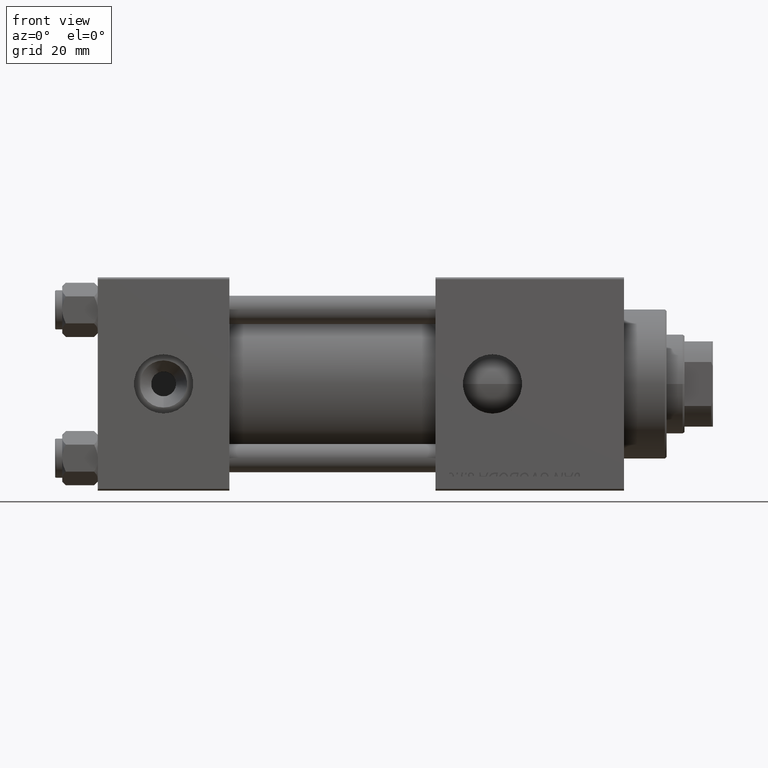
[diagram: clean part render]
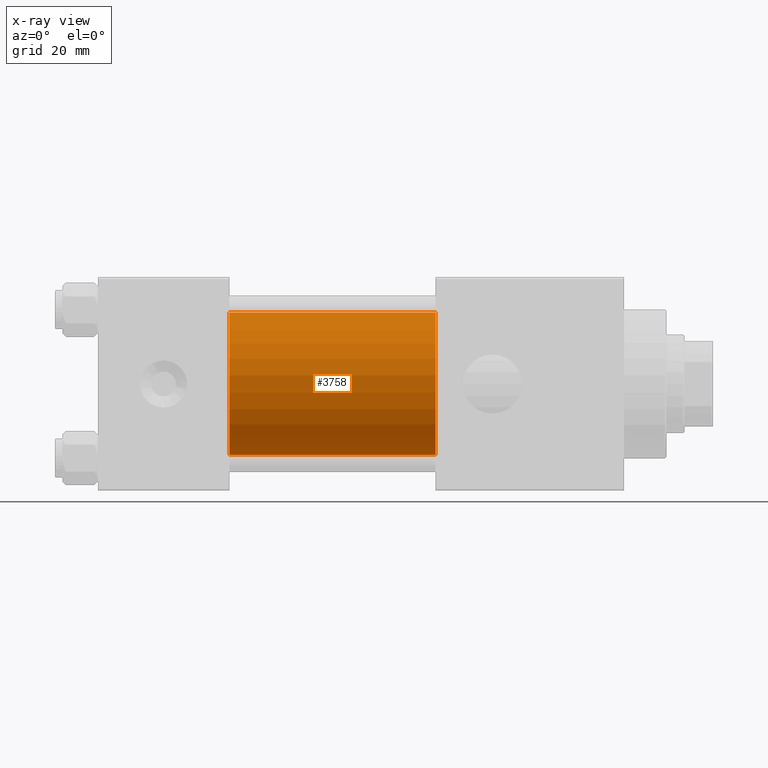
[diagram: x-ray — body ghosted, one internal face saturated and labeled with its STEP entity id]
A machine part, front view, then the same camera in x-ray: the body is ghosted and one INTERNAL B-rep face — a face not visible from any outside direction — is saturated and labeled: STEP entity #3758.
In plain terms, the highlighted cylindrical surface (partial cylindrical patch) has radius 20 mm, axis along (-1, -0, -0).
Its self-contained STEP definition (entity closure, byte-faithful):
#1389 = ORIENTED_EDGE ( 'NONE', *, *, #39319, .F. ) ;
#2459 = ORIENTED_EDGE ( 'NONE', *, *, #6200, .T. ) ;
#3348 = CIRCLE ( 'NONE', #10156, 20.00000000000000000 ) ;
#3462 = VERTEX_POINT ( 'NONE', #15877 ) ;
#3758 = ADVANCED_FACE ( 'NONE', ( #45457 ), #20774, .F. ) ;
#4140 = VECTOR ( 'NONE', #5297, 1000.000000000000000 ) ;
#4533 = CARTESIAN_POINT ( 'NONE',  ( 95.00000000000000000, -2.602085213965210642E-15, 0.000000000000000000 ) ) ;
#5297 = DIRECTION ( 'NONE',  ( -1.000000000000000000, -0.000000000000000000, -0.000000000000000000 ) ) ;
#6200 = EDGE_CURVE ( 'NONE', #3462, #12233, #41653, .T. ) ;
#7681 = EDGE_CURVE ( 'NONE', #43462, #12233, #3348, .T. ) ;
#8752 = ORIENTED_EDGE ( 'NONE', *, *, #33170, .T. ) ;
#9097 = CARTESIAN_POINT ( 'NONE',  ( 95.00000000000000000, -2.602085213965210642E-15, 0.000000000000000000 ) ) ;
#9138 = CARTESIAN_POINT ( 'NONE',  ( 37.00000000000000000, -1.527916156705046464E-16, -20.00000000000000000 ) ) ;
#10156 = AXIS2_PLACEMENT_3D ( 'NONE', #18281, #50653, #38706 ) ;
#10675 = AXIS2_PLACEMENT_3D ( 'NONE', #4533, #28155, #45134 ) ;
#12233 = VERTEX_POINT ( 'NONE', #9138 ) ;
#15725 = CIRCLE ( 'NONE', #10675, 20.00000000000000000 ) ;
#15877 = CARTESIAN_POINT ( 'NONE',  ( 95.00000000000000000, -1.527916156705046464E-16, -20.00000000000000000 ) ) ;
#16794 = DIRECTION ( 'NONE',  ( 0.000000000000000000, 0.000000000000000000, 1.000000000000000000 ) ) ;
#18281 = CARTESIAN_POINT ( 'NONE',  ( 37.00000000000000000, -2.602085213965210642E-15, 0.000000000000000000 ) ) ;
#20774 = CYLINDRICAL_SURFACE ( 'NONE', #32135, 20.00000000000000000 ) ;
#21015 = LINE ( 'NONE', #37197, #47311 ) ;
#24680 = CARTESIAN_POINT ( 'NONE',  ( 95.00000000000000000, -1.527916156705046464E-16, -20.00000000000000000 ) ) ;
#27860 = CARTESIAN_POINT ( 'NONE',  ( 95.00000000000000000, -2.602085213965210642E-15, 20.00000000000000000 ) ) ;
#28155 = DIRECTION ( 'NONE',  ( 1.000000000000000000, 0.000000000000000000, 0.000000000000000000 ) ) ;
#32135 = AXIS2_PLACEMENT_3D ( 'NONE', #9097, #36958, #16794 ) ;
#33170 = EDGE_CURVE ( 'NONE', #48965, #3462, #15725, .T. ) ;
#36958 = DIRECTION ( 'NONE',  ( -1.000000000000000000, -0.000000000000000000, -0.000000000000000000 ) ) ;
#37197 = CARTESIAN_POINT ( 'NONE',  ( 95.00000000000000000, -2.602085213965210642E-15, 20.00000000000000000 ) ) ;
#38706 = DIRECTION ( 'NONE',  ( 0.000000000000000000, 0.000000000000000000, -1.000000000000000000 ) ) ;
#39319 = EDGE_CURVE ( 'NONE', #48965, #43462, #21015, .T. ) ;
#41653 = LINE ( 'NONE', #24680, #4140 ) ;
#43462 = VERTEX_POINT ( 'NONE', #49877 ) ;
#45134 = DIRECTION ( 'NONE',  ( 0.000000000000000000, 0.000000000000000000, -1.000000000000000000 ) ) ;
#45322 = ORIENTED_EDGE ( 'NONE', *, *, #7681, .F. ) ;
#45457 = FACE_OUTER_BOUND ( 'NONE', #51695, .T. ) ;
#47311 = VECTOR ( 'NONE', #51646, 1000.000000000000000 ) ;
#48965 = VERTEX_POINT ( 'NONE', #27860 ) ;
#49877 = CARTESIAN_POINT ( 'NONE',  ( 37.00000000000000000, -2.602085213965210642E-15, 20.00000000000000000 ) ) ;
#50653 = DIRECTION ( 'NONE',  ( 1.000000000000000000, 0.000000000000000000, 0.000000000000000000 ) ) ;
#51646 = DIRECTION ( 'NONE',  ( -1.000000000000000000, -0.000000000000000000, -0.000000000000000000 ) ) ;
#51695 = EDGE_LOOP ( 'NONE', ( #8752, #2459, #45322, #1389 ) ) ;